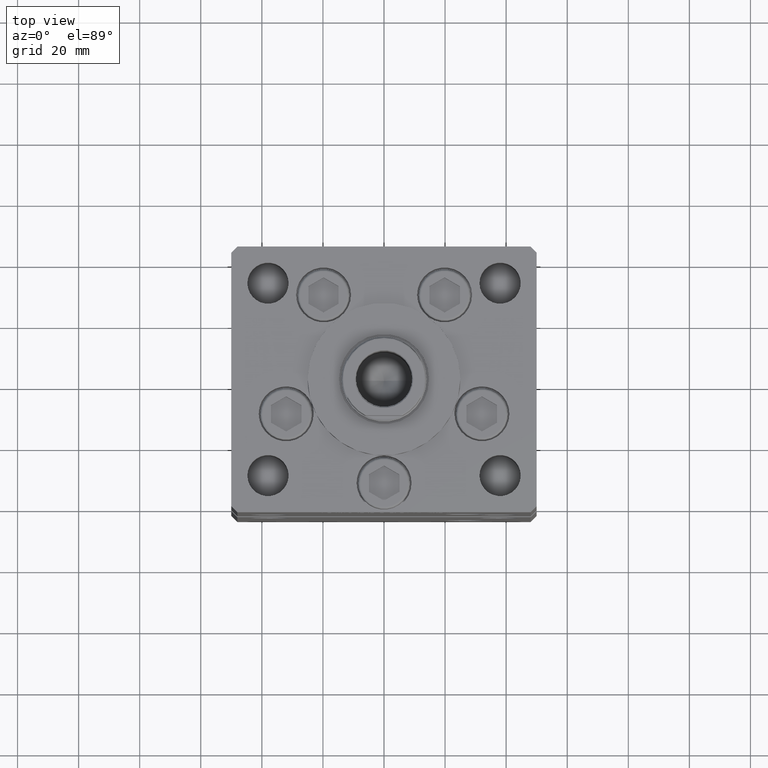
[diagram: clean part render]
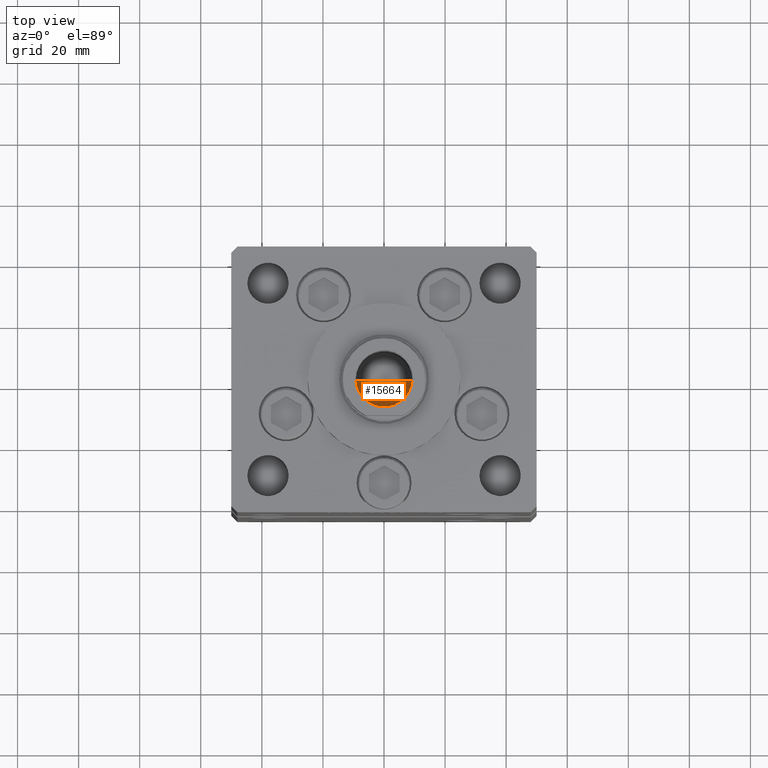
[diagram: same view with one face highlighted and labeled with its STEP entity id]
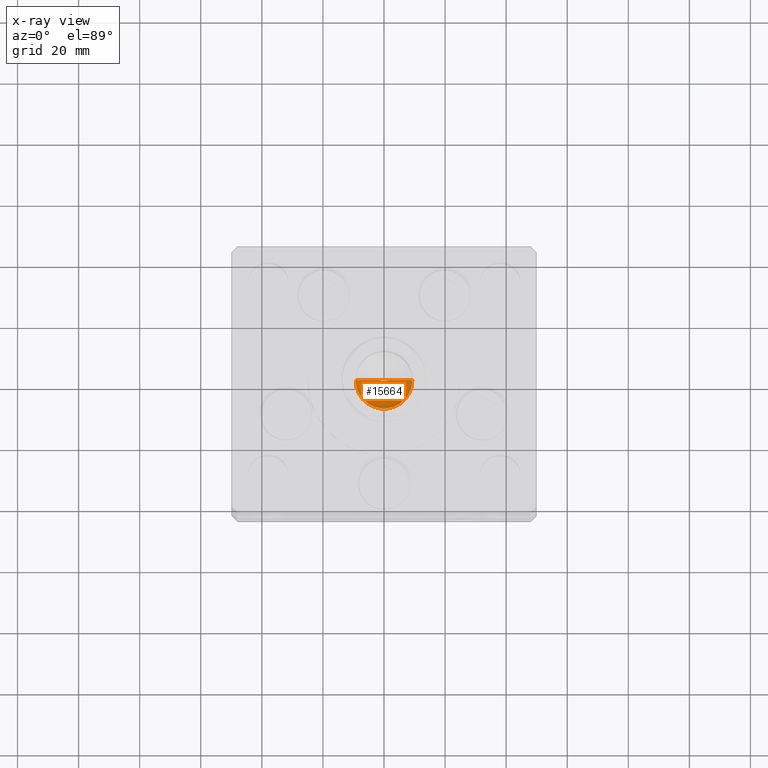
[diagram: x-ray of the same camera — body ghosted, the highlighted face saturated]
A machine part, top view. The second image highlights one B-rep face of the part: STEP entity #15664.
The next image is the same camera in x-ray: the body ghosted, the highlighted face saturated — about 9% of this face is hidden behind the body in this view.
In plain terms, the highlighted conical surface has half-angle 59 deg.
Its self-contained STEP definition (entity closure, byte-faithful):
#4043 = AXIS2_PLACEMENT_3D ( 'NONE', #31888, #39952, #27320 ) ;
#4699 = CARTESIAN_POINT ( 'NONE',  ( 9.249999999999994671, 0.000000000000000000, 130.2500000000000000 ) ) ;
#5752 = CARTESIAN_POINT ( 'NONE',  ( -9.249999999999994671, 1.132798289211300909E-15, 130.2500000000000000 ) ) ;
#6631 = CIRCLE ( 'NONE', #4043, 9.249999999999994671 ) ;
#15664 = ADVANCED_FACE ( 'NONE', ( #44269 ), #46191, .F. ) ;
#15759 = EDGE_LOOP ( 'NONE', ( #28398, #17094, #24993 ) ) ;
#16250 = LINE ( 'NONE', #4699, #34111 ) ;
#17094 = ORIENTED_EDGE ( 'NONE', *, *, #21850, .T. ) ;
#17847 = DIRECTION ( 'NONE',  ( -0.8571673007021117785, 1.049727191138617956E-16, 0.5150380749100550437 ) ) ;
#17865 = AXIS2_PLACEMENT_3D ( 'NONE', #19260, #48814, #23815 ) ;
#19260 = CARTESIAN_POINT ( 'NONE',  ( 0.000000000000000000, 0.000000000000000000, 130.2500000000000000 ) ) ;
#21850 = EDGE_CURVE ( 'NONE', #22502, #32742, #51432, .T. ) ;
#22502 = VERTEX_POINT ( 'NONE', #26040 ) ;
#23815 = DIRECTION ( 'NONE',  ( 1.000000000000000000, 0.000000000000000000, 0.000000000000000000 ) ) ;
#24975 = VERTEX_POINT ( 'NONE', #44969 ) ;
#24993 = ORIENTED_EDGE ( 'NONE', *, *, #34265, .T. ) ;
#26040 = CARTESIAN_POINT ( 'NONE',  ( -1.046994375366439223E-14, 0.000000000000000000, 124.6920392739950643 ) ) ;
#27320 = DIRECTION ( 'NONE',  ( 1.000000000000000000, 0.000000000000000000, 0.000000000000000000 ) ) ;
#28398 = ORIENTED_EDGE ( 'NONE', *, *, #34360, .F. ) ;
#31888 = CARTESIAN_POINT ( 'NONE',  ( 0.000000000000000000, 0.000000000000000000, 130.2500000000000000 ) ) ;
#32742 = VERTEX_POINT ( 'NONE', #40870 ) ;
#34111 = VECTOR ( 'NONE', #37213, 1000.000000000000000 ) ;
#34265 = EDGE_CURVE ( 'NONE', #32742, #24975, #6631, .T. ) ;
#34360 = EDGE_CURVE ( 'NONE', #22502, #24975, #16250, .T. ) ;
#37213 = DIRECTION ( 'NONE',  ( 0.8571673007021117785, 0.000000000000000000, 0.5150380749100550437 ) ) ;
#39952 = DIRECTION ( 'NONE',  ( -0.000000000000000000, -0.000000000000000000, 1.000000000000000000 ) ) ;
#40870 = CARTESIAN_POINT ( 'NONE',  ( -9.249999999999994671, 1.132798289211300909E-15, 130.2500000000000000 ) ) ;
#44269 = FACE_OUTER_BOUND ( 'NONE', #15759, .T. ) ;
#44969 = CARTESIAN_POINT ( 'NONE',  ( 9.249999999999994671, 0.000000000000000000, 130.2500000000000000 ) ) ;
#46191 = CONICAL_SURFACE ( 'NONE', #17865, 9.249999999999994671, 1.029744258676653423 ) ;
#48814 = DIRECTION ( 'NONE',  ( -0.000000000000000000, -0.000000000000000000, 1.000000000000000000 ) ) ;
#51432 = LINE ( 'NONE', #5752, #52709 ) ;
#52709 = VECTOR ( 'NONE', #17847, 1000.000000000000000 ) ;